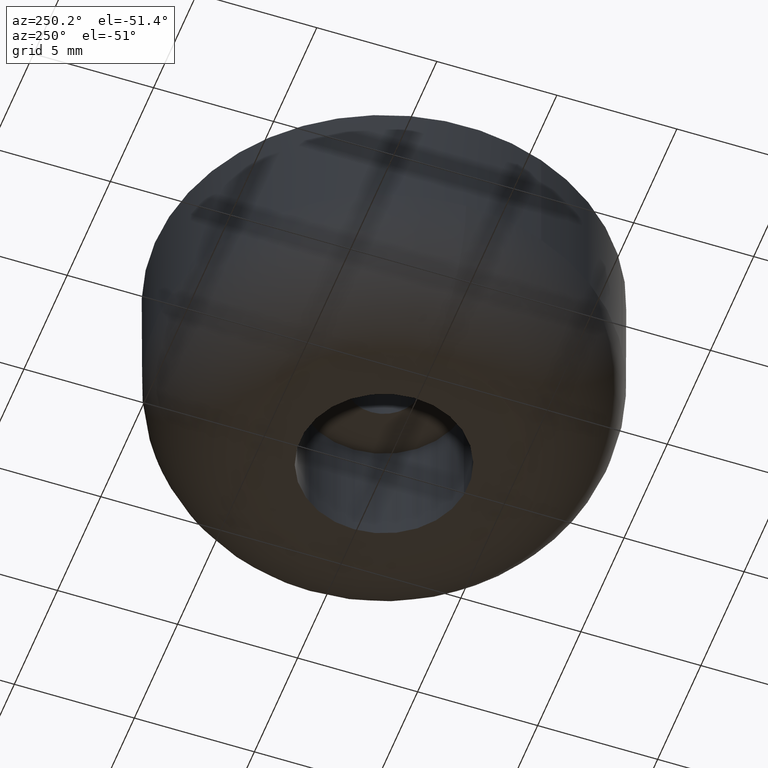
[diagram: clean part render]
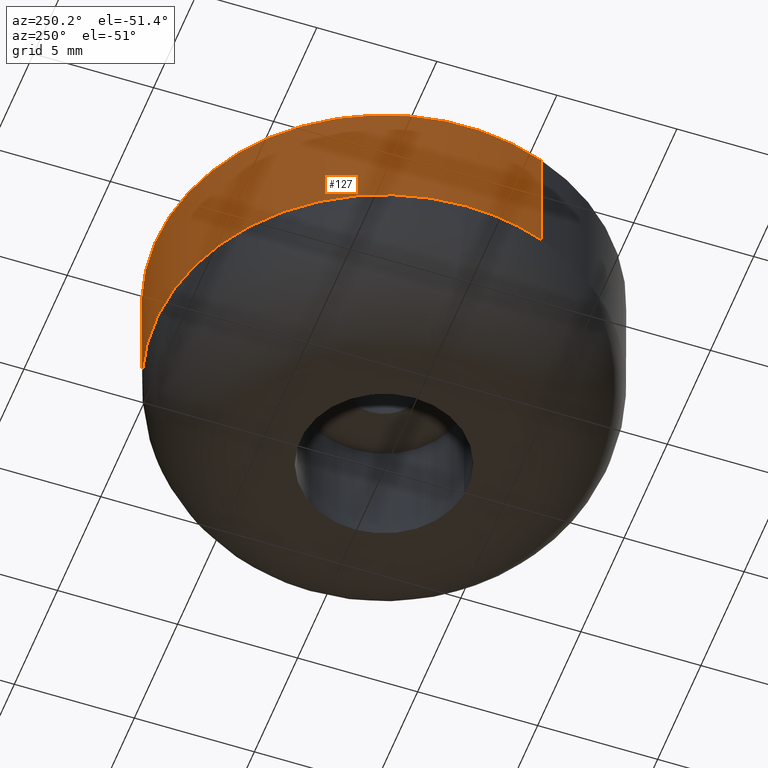
[diagram: same view with one face highlighted and labeled with its STEP entity id]
A machine part, auxiliary view. The second image highlights one B-rep face of the part: STEP entity #127.
In plain terms, the highlighted cylindrical surface (partial cylindrical patch) has radius 9.5 mm, axis along (-0, -0, -1).
Its self-contained STEP definition (entity closure, byte-faithful):
#127=ADVANCED_FACE('',(#289),#288,.T.);
#288=CYLINDRICAL_SURFACE('',#464,9.50000000000E+000);
#289=FACE_OUTER_BOUND('',#465,.T.);
#461=CARTESIAN_POINT('',(-2.65010738332E-015,-1.71375119626E-015,7.50000000000E+000));
#462=DIRECTION('',(-1.13927705072E-016,-4.94356713270E-016,-1.00000000000E+000));
#463=DIRECTION('',(9.36143578777E-001,3.51617974392E-001,-2.80477395695E-016));
#464=AXIS2_PLACEMENT_3D('',#461,#462,#463);
#465=EDGE_LOOP('',(#549,#550,#551,#552,#553));
#549=ORIENTED_EDGE('',*,*,#594,.T.);
#550=ORIENTED_EDGE('',*,*,#606,.T.);
#551=ORIENTED_EDGE('',*,*,#598,.T.);
#552=ORIENTED_EDGE('',*,*,#603,.T.);
#553=ORIENTED_EDGE('',*,*,#607,.F.);
#594=EDGE_CURVE('',#776,#777,#778,.T.);
#598=EDGE_CURVE('',#804,#805,#806,.T.);
#603=EDGE_CURVE('',#805,#831,#838,.T.);
#606=EDGE_CURVE('',#777,#804,#856,.T.);
#607=EDGE_CURVE('',#776,#831,#862,.T.);
#776=VERTEX_POINT('',#1000);
#777=VERTEX_POINT('',#1001);
#778=CIRCLE('',#1005,9.49999999998E+000);
#804=VERTEX_POINT('',#1020);
#805=VERTEX_POINT('',#1021);
#806=CIRCLE('',#1025,9.50000000000E+000);
#831=VERTEX_POINT('',#1041);
#838=CIRCLE('',#1049,9.50000000000E+000);
#856=(BOUNDED_CURVE() B_SPLINE_CURVE(1,(#1054,#1055),.UNSPECIFIED.,.F.,.F.) B_SPLINE_CURVE_WITH_KNOTS((2,2),(8.33333383004E-002,9.16666664635E-001),.UNSPECIFIED.) CURVE() GEOMETRIC_REPRESENTATION_ITEM() RATIONAL_B_SPLINE_CURVE((1.00000000000E+000,1.00000000000E+000)) REPRESENTATION_ITEM('') );
#862=(BOUNDED_CURVE() B_SPLINE_CURVE(1,(#1056,#1057),.UNSPECIFIED.,.F.,.F.) B_SPLINE_CURVE_WITH_KNOTS((2,2),(8.33333333334E-002,9.16666666667E-001),.UNSPECIFIED.) CURVE() GEOMETRIC_REPRESENTATION_ITEM() RATIONAL_B_SPLINE_CURVE((7.50000000000E-001,7.50000000000E-001)) REPRESENTATION_ITEM('') );
#1000=CARTESIAN_POINT('',(-8.89285889131E+000,-3.34171523901E+000,1.00000000000E+001));
#1001=CARTESIAN_POINT('',(8.89285889134E+000,3.34171523901E+000,1.00000000000E+001));
#1002=CARTESIAN_POINT('',(1.60280677619E-011,1.53210777398E-014,1.00000000000E+001));
#1003=DIRECTION('',(-5.28550467765E-015,-1.34967921650E-015,-1.00000000000E+000));
#1004=DIRECTION('',(9.36090409615E-001,3.51759498844E-001,-5.42247272352E-015));
#1005=AXIS2_PLACEMENT_3D('',#1002,#1003,#1004);
#1020=CARTESIAN_POINT('',(8.89336334186E+000,3.34037250464E+000,5.00000000000E+000));
#1021=CARTESIAN_POINT('',(-9.50000000000E+000,5.32907051820E-015,5.00000000000E+000));
#1022=CARTESIAN_POINT('',(-2.93492664601E-015,-2.94964297943E-015,5.00000000000E+000));
#1023=DIRECTION('',(0.00000000000E+000,0.00000000000E+000,1.00000000000E+000));
#1024=DIRECTION('',(-1.00000000000E+000,4.99600361081E-016,0.00000000000E+000));
#1025=AXIS2_PLACEMENT_3D('',#1022,#1023,#1024);
#1041=CARTESIAN_POINT('',(-8.89281995200E+000,-3.34181886122E+000,5.00000000000E+000));
#1046=CARTESIAN_POINT('',(-2.93492664601E-015,-2.94964297943E-015,5.00000000000E+000));
#1047=DIRECTION('',(0.00000000000E+000,0.00000000000E+000,1.00000000000E+000));
#1048=DIRECTION('',(-1.00000000000E+000,4.99600361081E-016,0.00000000000E+000));
#1049=AXIS2_PLACEMENT_3D('',#1046,#1047,#1048);
#1054=CARTESIAN_POINT('',(8.89336399838E+000,3.34037075672E+000,9.99999997020E+000));
#1055=CARTESIAN_POINT('',(8.89336399838E+000,3.34037075672E+000,5.00000001219E+000));
#1056=CARTESIAN_POINT('',(-8.89336399838E+000,-3.34037075672E+000,1.00000000000E+001));
#1057=CARTESIAN_POINT('',(-8.89336399838E+000,-3.34037075672E+000,5.00000000000E+000));